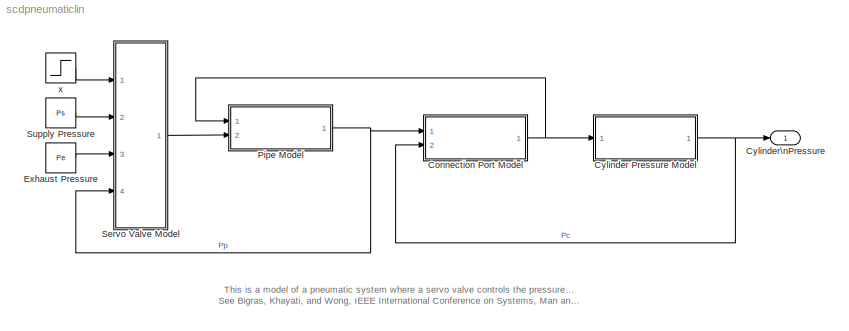
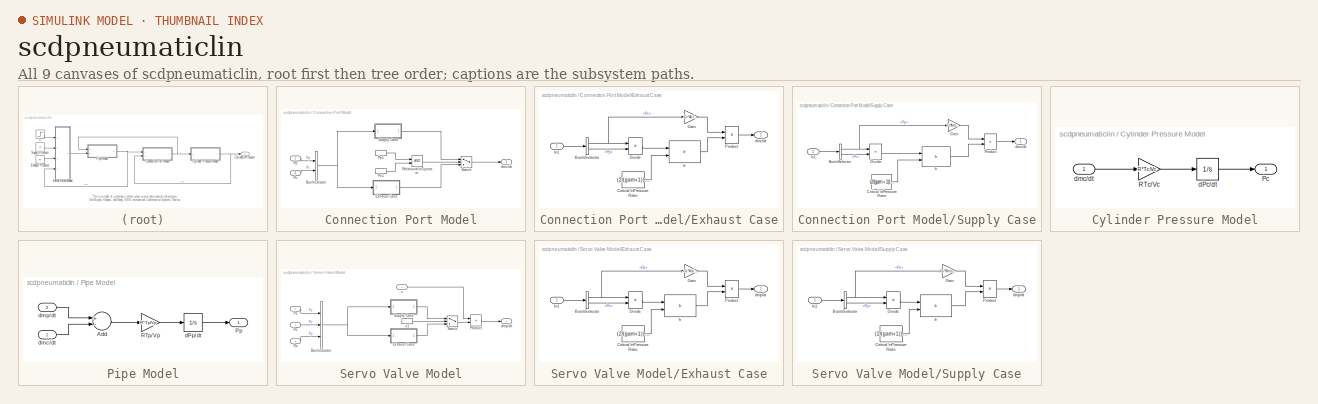
[diagram: thumbnail index - all 9 canvases of the model, root first then tree order]
MODEL scdpneumaticlin
KIND model
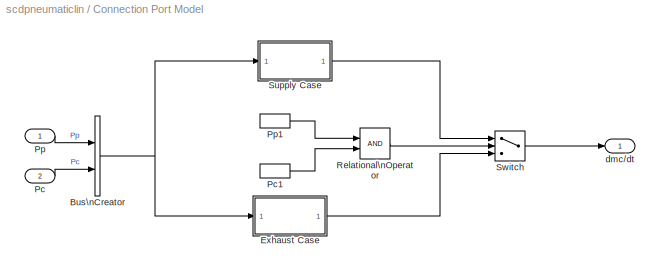
BLOCK [SubSystem] Connection Port Model
  MinAlgLoopOccurrences = off
  Ports = [2, 1]
  PropExecContextAcrossSSBoundary = on
  RTWSystemCode = Auto
  TreatAsAtomicUnit = off
BLOCK [BusCreator] Connection Port Model/Bus\nCreator
  DialogController = Simulink.DDGSource_Bus
  DisplayOption = bar
  Inputs = 2
  Ports = [2, 1]
BLOCK [SubSystem] Connection Port Model/Exhaust Case
  MinAlgLoopOccurrences = off
  Ports = [1, 1]
  PropExecContextAcrossSSBoundary = on
  RTWSystemCode = Auto
  TreatAsAtomicUnit = off
BLOCK [BusSelector] Connection Port Model/Exhaust Case/Bus\nSelector
  DialogController = Simulink.DDGSource_Bus
  OutputSignals = Pc,Pp
  Ports = [1, 2]
BLOCK [Constant] Connection Port Model/Exhaust Case/Critical \nPressure Ratio
  Value = (2/(gam+1))^(gam/(gam-1))
BLOCK [Product] Connection Port Model/Exhaust Case/Divide
  InputSameDT = off
  Inputs = /*
  OutDataTypeMode = Inherit via internal rule
  OutScaling = 2^-10
  Ports = [2, 1]
  RndMeth = Floor
  SaturateOnIntegerOverflow = off
BLOCK [Gain] Connection Port Model/Exhaust Case/Gain
  Gain = -Cc*Ac/sqrt(R*Tc)
  OutDataTypeMode = Inherit via internal rule
  ParameterDataTypeMode = Inherit via internal rule
  SaturateOnIntegerOverflow = off
BLOCK [Inport] Connection Port Model/Exhaust Case/In1
  IconDisplay = Port number
  LatchInput = off
BLOCK [Product] Connection Port Model/Exhaust Case/Product
  InputSameDT = off
  Inputs = **
  OutDataTypeMode = Inherit via internal rule
  OutScaling = 2^-10
  Ports = [2, 1]
  RndMeth = Floor
  SaturateOnIntegerOverflow = off
BLOCK [Outport] Connection Port Model/Exhaust Case/dmc//dt
  BusOutputAsStruct = off
  IconDisplay = Port number
BLOCK [Reference] Connection Port Model/Exhaust Case/fr  REF=scddemolib/fr  (lib defined in mdl_cbce9dac82f5)
  Ports = [2, 1]
  ShowPortLabels = on
  SourceBlock = scddemolib/fr
  SourceType = Stateflow
BLOCK [Inport] Connection Port Model/Pc
  IconDisplay = Port number
  LatchInput = off
  Port = 2
BLOCK [InportShadow] Connection Port Model/Pc1
  IconDisplay = Port number
  LatchInput = off
  Port = 2
BLOCK [Inport] Connection Port Model/Pp
  IconDisplay = Port number
  LatchInput = off
BLOCK [InportShadow] Connection Port Model/Pp1
  IconDisplay = Port number
  LatchInput = off
BLOCK [RelationalOperator] Connection Port Model/Relational\nOperator
  InputSameDT = off
  LogicOutDataTypeMode = Boolean
BLOCK [SubSystem] Connection Port Model/Supply Case
  MinAlgLoopOccurrences = off
  Ports = [1, 1]
  PropExecContextAcrossSSBoundary = on
  RTWSystemCode = Auto
  TreatAsAtomicUnit = off
BLOCK [BusSelector] Connection Port Model/Supply Case/Bus\nSelector
  DialogController = Simulink.DDGSource_Bus
  OutputSignals = Pp,Pc
  Ports = [1, 2]
BLOCK [Constant] Connection Port Model/Supply Case/Critical \nPressure Ratio
  Value = (2/(gam+1))^(gam/(gam-1))
BLOCK [Product] Connection Port Model/Supply Case/Divide
  InputSameDT = off
  Inputs = /*
  OutDataTypeMode = Inherit via internal rule
  OutScaling = 2^-10
  Ports = [2, 1]
  RndMeth = Floor
  SaturateOnIntegerOverflow = off
BLOCK [Gain] Connection Port Model/Supply Case/Gain
  Gain = Cc*Ac/sqrt(R*Tp)
  OutDataTypeMode = Inherit via internal rule
  ParameterDataTypeMode = Inherit via internal rule
  SaturateOnIntegerOverflow = off
BLOCK [Inport] Connection Port Model/Supply Case/In1
  IconDisplay = Port number
  LatchInput = off
BLOCK [Product] Connection Port Model/Supply Case/Product
  InputSameDT = off
  Inputs = **
  OutDataTypeMode = Inherit via internal rule
  OutScaling = 2^-10
  Ports = [2, 1]
  RndMeth = Floor
  SaturateOnIntegerOverflow = off
BLOCK [Outport] Connection Port Model/Supply Case/dmc//dt
  BusOutputAsStruct = off
  IconDisplay = Port number
BLOCK [Reference] Connection Port Model/Supply Case/fr  REF=scddemolib/fr  (lib defined in mdl_cbce9dac82f5)
  Ports = [2, 1]
  ShowPortLabels = on
  SourceBlock = scddemolib/fr
  SourceType = Stateflow
BLOCK [Switch] Connection Port Model/Switch
  InputSameDT = off
  SaturateOnIntegerOverflow = off
  Threshold = 1
BLOCK [Outport] Connection Port Model/dmc//dt
  BusOutputAsStruct = off
  IconDisplay = Port number
BLOCK [SubSystem] Cylinder Pressure Model
  MinAlgLoopOccurrences = off
  Ports = [1, 1]
  PropExecContextAcrossSSBoundary = on
  RTWSystemCode = Auto
  TreatAsAtomicUnit = off
BLOCK [Outport] Cylinder Pressure Model/Pc
  BusOutputAsStruct = off
  IconDisplay = Port number
BLOCK [Gain] Cylinder Pressure Model/RTc//Vc
  Gain = R*Tc/Vc
  OutDataTypeMode = Inherit via internal rule
  ParameterDataTypeMode = Inherit via internal rule
  SaturateOnIntegerOverflow = off
BLOCK [Integrator] Cylinder Pressure Model/dPc//dt
  InitialCondition = P0
  LowerSaturationLimit = 0
  Ports = [1, 1]
  UpperSaturationLimit = 0.7e6
BLOCK [Inport] Cylinder Pressure Model/dmc//dt
  IconDisplay = Port number
  LatchInput = off
BLOCK [Outport] Cylinder\nPressure
  BusOutputAsStruct = off
  IconDisplay = Port number
BLOCK [Constant] Exhaust Pressure
  Value = Pe
BLOCK [SubSystem] Pipe Model
  MinAlgLoopOccurrences = off
  Ports = [2, 1]
  PropExecContextAcrossSSBoundary = on
  RTWSystemCode = Auto
  TreatAsAtomicUnit = off
BLOCK [Sum] Pipe Model/Add
  InputSameDT = off
  Inputs = +-
  OutDataTypeMode = Inherit via internal rule
  OutScaling = 2^-10
  Ports = [2, 1]
  SaturateOnIntegerOverflow = off
BLOCK [Outport] Pipe Model/Pp
  BusOutputAsStruct = off
  IconDisplay = Port number
BLOCK [Gain] Pipe Model/RTp//Vp
  Gain = R*Tp/Vp
  OutDataTypeMode = Inherit via internal rule
  ParameterDataTypeMode = Inherit via internal rule
  SaturateOnIntegerOverflow = off
BLOCK [Integrator] Pipe Model/dPp//dt
  InitialCondition = P0
  LowerSaturationLimit = 0
  Ports = [1, 1]
  UpperSaturationLimit = 0.7e6
BLOCK [Inport] Pipe Model/dmc//dt
  IconDisplay = Port number
  LatchInput = off
BLOCK [Inport] Pipe Model/dmp//dt
  IconDisplay = Port number
  LatchInput = off
  Port = 2
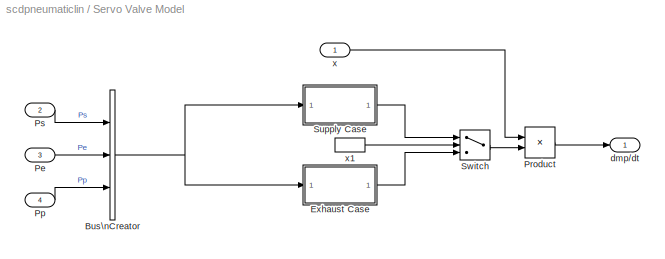
BLOCK [SubSystem] Servo Valve Model
  MinAlgLoopOccurrences = off
  Ports = [4, 1]
  PropExecContextAcrossSSBoundary = on
  RTWSystemCode = Auto
  TreatAsAtomicUnit = off
BLOCK [BusCreator] Servo Valve Model/Bus\nCreator
  DialogController = Simulink.DDGSource_Bus
  DisplayOption = bar
  Inputs = 3
  Ports = [3, 1]
BLOCK [SubSystem] Servo Valve Model/Exhaust Case
  MinAlgLoopOccurrences = off
  Ports = [1, 1]
  PropExecContextAcrossSSBoundary = on
  RTWSystemCode = Auto
  TreatAsAtomicUnit = off
BLOCK [BusSelector] Servo Valve Model/Exhaust Case/Bus\nSelector
  DialogController = Simulink.DDGSource_Bus
  OutputSignals = Pp,Pe
  Ports = [1, 2]
BLOCK [Constant] Servo Valve Model/Exhaust Case/Critical \nPressure Ratio
  Value = (2/(gam+1))^(gam/(gam-1))
BLOCK [Product] Servo Valve Model/Exhaust Case/Divide
  InputSameDT = off
  Inputs = /*
  OutDataTypeMode = Inherit via internal rule
  OutScaling = 2^-10
  Ports = [2, 1]
  RndMeth = Floor
  SaturateOnIntegerOverflow = off
BLOCK [Gain] Servo Valve Model/Exhaust Case/Gain
  Gain = -Cs*Ws/sqrt(R*Tp)
  OutDataTypeMode = Inherit via internal rule
  ParameterDataTypeMode = Inherit via internal rule
  SaturateOnIntegerOverflow = off
BLOCK [Inport] Servo Valve Model/Exhaust Case/In1
  IconDisplay = Port number
  LatchInput = off
BLOCK [Product] Servo Valve Model/Exhaust Case/Product
  InputSameDT = off
  Inputs = **
  OutDataTypeMode = Inherit via internal rule
  OutScaling = 2^-10
  Ports = [2, 1]
  RndMeth = Floor
  SaturateOnIntegerOverflow = off
BLOCK [Outport] Servo Valve Model/Exhaust Case/dmp//dt
  BusOutputAsStruct = off
  IconDisplay = Port number
BLOCK [Reference] Servo Valve Model/Exhaust Case/fr  REF=scddemolib/fr  (lib defined in mdl_cbce9dac82f5)
  Ports = [2, 1]
  ShowPortLabels = on
  SourceBlock = scddemolib/fr
  SourceType = Stateflow
BLOCK [Inport] Servo Valve Model/Pe
  IconDisplay = Port number
  LatchInput = off
  Port = 3
BLOCK [Inport] Servo Valve Model/Pp
  IconDisplay = Port number
  LatchInput = off
  Port = 4
BLOCK [Product] Servo Valve Model/Product
  InputSameDT = off
  OutDataTypeMode = Inherit via internal rule
  Ports = [2, 1]
  SaturateOnIntegerOverflow = off
BLOCK [Inport] Servo Valve Model/Ps
  IconDisplay = Port number
  LatchInput = off
  Port = 2
BLOCK [SubSystem] Servo Valve Model/Supply Case
  MinAlgLoopOccurrences = off
  Ports = [1, 1]
  PropExecContextAcrossSSBoundary = on
  RTWSystemCode = Auto
  TreatAsAtomicUnit = off
BLOCK [BusSelector] Servo Valve Model/Supply Case/Bus\nSelector
  DialogController = Simulink.DDGSource_Bus
  OutputSignals = Ps,Pp
  Ports = [1, 2]
BLOCK [Constant] Servo Valve Model/Supply Case/Critical \nPressure Ratio
  Value = (2/(gam+1))^(gam/(gam-1))
BLOCK [Product] Servo Valve Model/Supply Case/Divide
  InputSameDT = off
  Inputs = /*
  OutDataTypeMode = Inherit via internal rule
  OutScaling = 2^-10
  Ports = [2, 1]
  RndMeth = Floor
  SaturateOnIntegerOverflow = off
BLOCK [Gain] Servo Valve Model/Supply Case/Gain
  Gain = Cs*Ws/sqrt(R*Ts)
  OutDataTypeMode = Inherit via internal rule
  ParameterDataTypeMode = Inherit via internal rule
  SaturateOnIntegerOverflow = off
BLOCK [Inport] Servo Valve Model/Supply Case/In1
  IconDisplay = Port number
  LatchInput = off
BLOCK [Product] Servo Valve Model/Supply Case/Product
  InputSameDT = off
  Inputs = **
  OutDataTypeMode = Inherit via internal rule
  OutScaling = 2^-10
  Ports = [2, 1]
  RndMeth = Floor
  SaturateOnIntegerOverflow = off
BLOCK [Outport] Servo Valve Model/Supply Case/dmp//dt
  BusOutputAsStruct = off
  IconDisplay = Port number
  InitialOutput = 10
BLOCK [Reference] Servo Valve Model/Supply Case/fr  REF=scddemolib/fr  (lib defined in mdl_cbce9dac82f5)
  Ports = [2, 1]
  ShowPortLabels = on
  SourceBlock = scddemolib/fr
  SourceType = Stateflow
BLOCK [Switch] Servo Valve Model/Switch
  InputSameDT = off
  SaturateOnIntegerOverflow = off
BLOCK [Outport] Servo Valve Model/dmp//dt
  BusOutputAsStruct = off
  IconDisplay = Port number
BLOCK [Inport] Servo Valve Model/x
  IconDisplay = Port number
  LatchInput = off
BLOCK [InportShadow] Servo Valve Model/x1
  IconDisplay = Port number
  LatchInput = off
BLOCK [Constant] Supply Pressure
  Value = Ps
BLOCK [Step] x
  After = 0.5e-4
  SampleTime = 0
ANNOTATION (root): This is a model of a pneumatic system where a servo valve controls the pressure of a cylinder.\nSee Bigras, Khayati, and Wong, IEEE International Conference on Systems, Man and Cybernatics, Hammamet, Tunisia, October 6-9 2002\n
NET Connection Port Model/Bus\nCreator:1 -> Connection Port Model/Exhaust Case:1, Connection Port Model/Supply Case:1
NET Connection Port Model/Exhaust Case/Bus\nSelector:1 -> Connection Port Model/Exhaust Case/Divide:1, Connection Port Model/Exhaust Case/Gain:1
LINE Connection Port Model/Exhaust Case/Bus\nSelector:2 -> Connection Port Model/Exhaust Case/Divide:2
LINE Connection Port Model/Exhaust Case/Critical \nPressure Ratio:1 -> Connection Port Model/Exhaust Case/fr:2
LINE Connection Port Model/Exhaust Case/Divide:1 -> Connection Port Model/Exhaust Case/fr:1
LINE Connection Port Model/Exhaust Case/Gain:1 -> Connection Port Model/Exhaust Case/Product:1
LINE Connection Port Model/Exhaust Case/In1:1 -> Connection Port Model/Exhaust Case/Bus\nSelector:1
LINE Connection Port Model/Exhaust Case/Product:1 -> Connection Port Model/Exhaust Case/dmc//dt:1
LINE Connection Port Model/Exhaust Case/fr:1 -> Connection Port Model/Exhaust Case/Product:2
LINE Connection Port Model/Exhaust Case:1 -> Connection Port Model/Switch:3
LINE Connection Port Model/Pc1:1 -> Connection Port Model/Relational\nOperator:2
LINE Connection Port Model/Pc:1 -> Connection Port Model/Bus\nCreator:2
LINE Connection Port Model/Pp1:1 -> Connection Port Model/Relational\nOperator:1
LINE Connection Port Model/Pp:1 -> Connection Port Model/Bus\nCreator:1
LINE Connection Port Model/Relational\nOperator:1 -> Connection Port Model/Switch:2
NET Connection Port Model/Supply Case/Bus\nSelector:1 -> Connection Port Model/Supply Case/Divide:1, Connection Port Model/Supply Case/Gain:1
LINE Connection Port Model/Supply Case/Bus\nSelector:2 -> Connection Port Model/Supply Case/Divide:2
LINE Connection Port Model/Supply Case/Critical \nPressure Ratio:1 -> Connection Port Model/Supply Case/fr:2
LINE Connection Port Model/Supply Case/Divide:1 -> Connection Port Model/Supply Case/fr:1
LINE Connection Port Model/Supply Case/Gain:1 -> Connection Port Model/Supply Case/Product:1
LINE Connection Port Model/Supply Case/In1:1 -> Connection Port Model/Supply Case/Bus\nSelector:1
LINE Connection Port Model/Supply Case/Product:1 -> Connection Port Model/Supply Case/dmc//dt:1
LINE Connection Port Model/Supply Case/fr:1 -> Connection Port Model/Supply Case/Product:2
LINE Connection Port Model/Supply Case:1 -> Connection Port Model/Switch:1
LINE Connection Port Model/Switch:1 -> Connection Port Model/dmc//dt:1
NET Connection Port Model:1 -> Cylinder Pressure Model:1, Pipe Model:1
LINE Cylinder Pressure Model/RTc//Vc:1 -> Cylinder Pressure Model/dPc//dt:1
LINE Cylinder Pressure Model/dPc//dt:1 -> Cylinder Pressure Model/Pc:1
LINE Cylinder Pressure Model/dmc//dt:1 -> Cylinder Pressure Model/RTc//Vc:1
NET Cylinder Pressure Model:1 -> Connection Port Model:2, Cylinder\nPressure:1
LINE Exhaust Pressure:1 -> Servo Valve Model:3
LINE Pipe Model/Add:1 -> Pipe Model/RTp//Vp:1
LINE Pipe Model/RTp//Vp:1 -> Pipe Model/dPp//dt:1
LINE Pipe Model/dPp//dt:1 -> Pipe Model/Pp:1
LINE Pipe Model/dmc//dt:1 -> Pipe Model/Add:2
LINE Pipe Model/dmp//dt:1 -> Pipe Model/Add:1
NET Pipe Model:1 -> Connection Port Model:1, Servo Valve Model:4
NET Servo Valve Model/Bus\nCreator:1 -> Servo Valve Model/Exhaust Case:1, Servo Valve Model/Supply Case:1
NET Servo Valve Model/Exhaust Case/Bus\nSelector:1 -> Servo Valve Model/Exhaust Case/Divide:1, Servo Valve Model/Exhaust Case/Gain:1
LINE Servo Valve Model/Exhaust Case/Bus\nSelector:2 -> Servo Valve Model/Exhaust Case/Divide:2
LINE Servo Valve Model/Exhaust Case/Critical \nPressure Ratio:1 -> Servo Valve Model/Exhaust Case/fr:2
LINE Servo Valve Model/Exhaust Case/Divide:1 -> Servo Valve Model/Exhaust Case/fr:1
LINE Servo Valve Model/Exhaust Case/Gain:1 -> Servo Valve Model/Exhaust Case/Product:1
LINE Servo Valve Model/Exhaust Case/In1:1 -> Servo Valve Model/Exhaust Case/Bus\nSelector:1
LINE Servo Valve Model/Exhaust Case/Product:1 -> Servo Valve Model/Exhaust Case/dmp//dt:1
LINE Servo Valve Model/Exhaust Case/fr:1 -> Servo Valve Model/Exhaust Case/Product:2
LINE Servo Valve Model/Exhaust Case:1 -> Servo Valve Model/Switch:3
LINE Servo Valve Model/Pe:1 -> Servo Valve Model/Bus\nCreator:2
LINE Servo Valve Model/Pp:1 -> Servo Valve Model/Bus\nCreator:3
LINE Servo Valve Model/Product:1 -> Servo Valve Model/dmp//dt:1
LINE Servo Valve Model/Ps:1 -> Servo Valve Model/Bus\nCreator:1
NET Servo Valve Model/Supply Case/Bus\nSelector:1 -> Servo Valve Model/Supply Case/Divide:1, Servo Valve Model/Supply Case/Gain:1
LINE Servo Valve Model/Supply Case/Bus\nSelector:2 -> Servo Valve Model/Supply Case/Divide:2
LINE Servo Valve Model/Supply Case/Critical \nPressure Ratio:1 -> Servo Valve Model/Supply Case/fr:2
LINE Servo Valve Model/Supply Case/Divide:1 -> Servo Valve Model/Supply Case/fr:1
LINE Servo Valve Model/Supply Case/Gain:1 -> Servo Valve Model/Supply Case/Product:1
LINE Servo Valve Model/Supply Case/In1:1 -> Servo Valve Model/Supply Case/Bus\nSelector:1
LINE Servo Valve Model/Supply Case/Product:1 -> Servo Valve Model/Supply Case/dmp//dt:1
LINE Servo Valve Model/Supply Case/fr:1 -> Servo Valve Model/Supply Case/Product:2
LINE Servo Valve Model/Supply Case:1 -> Servo Valve Model/Switch:1
LINE Servo Valve Model/Switch:1 -> Servo Valve Model/Product:2
LINE Servo Valve Model/x1:1 -> Servo Valve Model/Switch:2
LINE Servo Valve Model/x:1 -> Servo Valve Model/Product:1
LINE Servo Valve Model:1 -> Pipe Model:2
LINE Supply Pressure:1 -> Servo Valve Model:2
LINE x:1 -> Servo Valve Model:1
note: NET lines group one-source signal fan-out (src -> all destinations, sorted); 1:1 wires keep LINE
